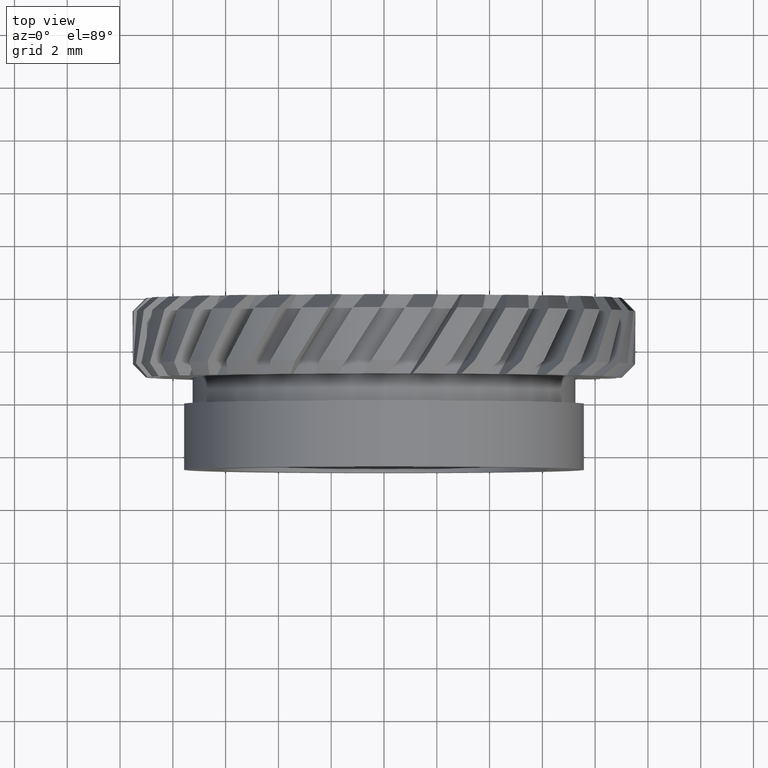
[diagram: clean part render]
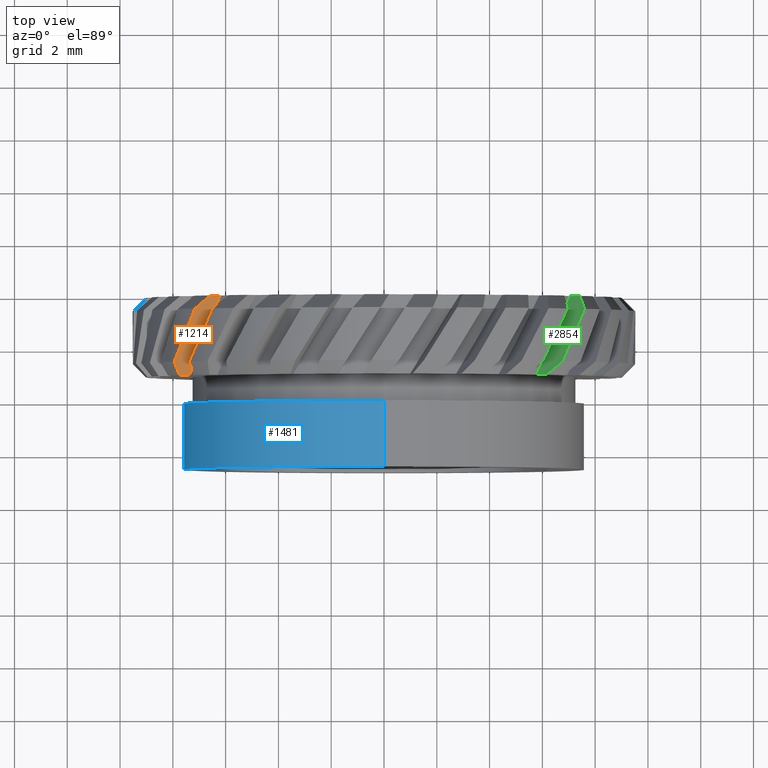
[diagram: same view with three faces highlighted in distinct colors, each labeled with its STEP entity id]
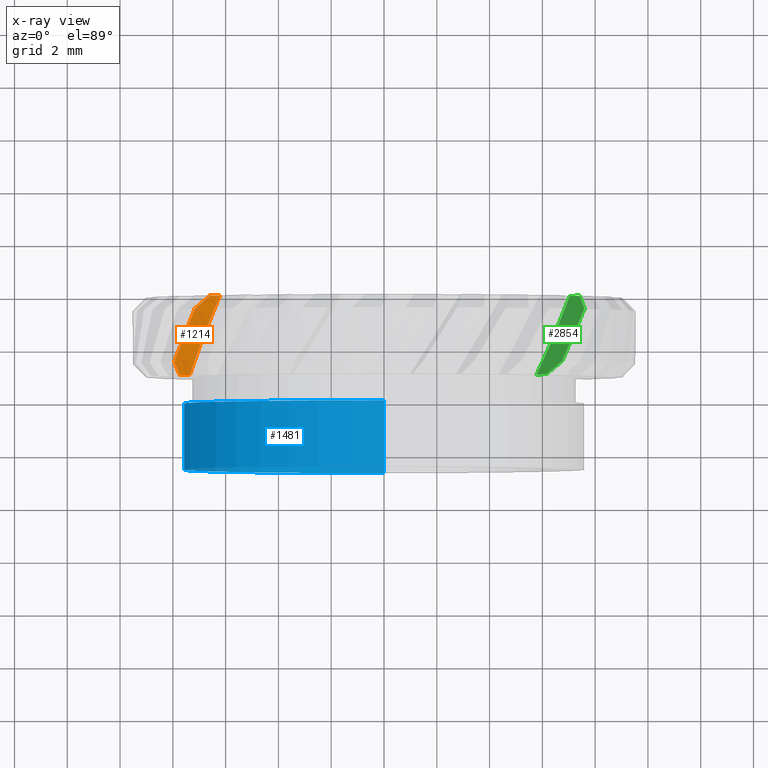
[diagram: x-ray of the same camera — body ghosted, the three highlighted faces saturated]
A machine part, top view with three faces highlighted in distinct colors.
The next image is the same camera in x-ray (body ghosted, the three faces saturated) — at least one of them is partly hidden behind the body in this view.
Their STEP definitions:

[orange] entity #1214 — the highlighted planar face has unit normal (-0.5629, 0.5408, -0.6251).
#131 = CARTESIAN_POINT ( 'NONE',  ( -7.745846453887818200, 18.87125740523061900, 4.631683032418537000 ) ) ;
#395 = CARTESIAN_POINT ( 'NONE',  ( -7.712005647165258700, 20.03370540940624900, 5.606787828037464100 ) ) ;
#480 = CARTESIAN_POINT ( 'NONE',  ( -7.366731118601965300, 18.87125740523061500, 4.290326051271807600 ) ) ;
#485 = VERTEX_POINT ( 'NONE', #3366 ) ;
#657 = B_SPLINE_CURVE_WITH_KNOTS ( 'NONE', 3,
 ( #4915, #6657, #7370, #131 ),
 .UNSPECIFIED., .F., .F.,
 ( 4, 4 ),
 ( 3.250321512666783800E-007, 0.0008191307024660573800 ),
 .UNSPECIFIED. ) ;
#658 = LINE ( 'NONE', #1713, #6813 ) ;
#776 =( BOUNDED_CURVE ( )  B_SPLINE_CURVE ( 3, ( #5887, #6494, #5331, #981 ),
 .UNSPECIFIED., .F., .T. ) 
 B_SPLINE_CURVE_WITH_KNOTS ( ( 4, 4 ),
 ( 1.548788711863043500, 1.570796326794896800 ),
 .UNSPECIFIED. ) 
 CURVE ( )  GEOMETRIC_REPRESENTATION_ITEM ( )  RATIONAL_B_SPLINE_CURVE ( ( 1.000000000000000000, 0.9999596391476737200, 0.9999596391476737200, 1.000000000000000000 ) ) 
 REPRESENTATION_ITEM ( '' )  );
#792 = CARTESIAN_POINT ( 'NONE',  ( -7.072086261338187200, 19.76279148755805100, 4.796247842063832100 ) ) ;
#808 = VERTEX_POINT ( 'NONE', #4738 ) ;
#960 = EDGE_CURVE ( 'NONE', #4555, #7469, #7052, .T. ) ;
#981 = CARTESIAN_POINT ( 'NONE',  ( -6.335309637194721500, 21.57943553625633400, 5.704338419209346300 ) ) ;
#1041 = CARTESIAN_POINT ( 'NONE',  ( -7.450953325787831500, 20.70139386461857700, 5.949318901140630400 ) ) ;
#1214 = ADVANCED_FACE ( 'NONE', ( #6470 ), #5675, .F. ) ;
#1263 = DIRECTION ( 'NONE',  ( -0.7431448254773862500, 0.0000000000000000000, 0.6691306063588671200 ) ) ;
#1505 = CARTESIAN_POINT ( 'NONE',  ( -7.366731118601965300, 18.87125740523061500, 4.290326051271807600 ) ) ;
#1602 = ORIENTED_EDGE ( 'NONE', *, *, #3360, .F. ) ;
#1713 = CARTESIAN_POINT ( 'NONE',  ( -1.164937419604970000, 18.87125740523061900, -1.293794077206075400 ) ) ;
#1814 = DIRECTION ( 'NONE',  ( 0.7431448254773862500, 0.0000000000000000000, -0.6691306063588671200 ) ) ;
#1892 = CARTESIAN_POINT ( 'NONE',  ( -6.776192494000686600, 21.70538838200027600, 6.210266586866255000 ) ) ;
#2086 = CARTESIAN_POINT ( 'NONE',  ( -6.727064007195107100, 20.66870797294348000, 5.269251113147903200 ) ) ;
#2400 = VECTOR ( 'NONE', #1814, 1000.000000000000000 ) ;
#2673 = DIRECTION ( 'NONE',  ( -0.5628582632847399800, 0.5407575913135005400, -0.6251174312790418500 ) ) ;
#2699 = DIRECTION ( 'NONE',  ( -0.3618374549687630200, -0.8411784753765523300, -0.4018612058222430000 ) ) ;
#3127 = CARTESIAN_POINT ( 'NONE',  ( -6.971977192251825900, 21.53868184943352700, 6.242342499686852600 ) ) ;
#3146 = VERTEX_POINT ( 'NONE', #3314 ) ;
#3211 = AXIS2_PLACEMENT_3D ( 'NONE', #4492, #2673, #2699 ) ;
#3305 = CARTESIAN_POINT ( 'NONE',  ( -6.335309637194721500, 21.57943553625633400, 5.704338419209346300 ) ) ;
#3314 = CARTESIAN_POINT ( 'NONE',  ( -6.208246742853996900, 21.87125740523061900, 5.842370869761940500 ) ) ;
#3360 = EDGE_CURVE ( 'NONE', #4555, #3146, #5127, .T. ) ;
#3366 = CARTESIAN_POINT ( 'NONE',  ( -7.949263164194285000, 19.37125740523060800, 5.247365067001149800 ) ) ;
#3412 = ORIENTED_EDGE ( 'NONE', *, *, #3999, .F. ) ;
#3545 = CARTESIAN_POINT ( 'NONE',  ( -7.167304694373476600, 21.37125740523061900, 6.273385722081183500 ) ) ;
#3608 = VERTEX_POINT ( 'NONE', #3305 ) ;
#3682 = ORIENTED_EDGE ( 'NONE', *, *, #7542, .T. ) ;
#3999 = EDGE_CURVE ( 'NONE', #3608, #4304, #5907, .T. ) ;
#4271 =( BOUNDED_CURVE ( )  B_SPLINE_CURVE ( 3, ( #4553, #395, #1041, #5797 ),
 .UNSPECIFIED., .F., .T. ) 
 B_SPLINE_CURVE_WITH_KNOTS ( ( 4, 4 ),
 ( 4.562798301920572900, 4.698338250505564400 ),
 .UNSPECIFIED. ) 
 CURVE ( )  GEOMETRIC_REPRESENTATION_ITEM ( )  RATIONAL_B_SPLINE_CURVE ( ( 1.000000000000000000, 0.9984696627031844900, 0.9984696627031844900, 1.000000000000000000 ) ) 
 REPRESENTATION_ITEM ( '' )  );
#4281 = CARTESIAN_POINT ( 'NONE',  ( 0.1255287498014223400, 21.87125740523061900, 0.1394138005003188500 ) ) ;
#4300 = EDGE_CURVE ( 'NONE', #4304, #808, #658, .T. ) ;
#4304 = VERTEX_POINT ( 'NONE', #480 ) ;
#4465 = ORIENTED_EDGE ( 'NONE', *, *, #960, .T. ) ;
#4492 = CARTESIAN_POINT ( 'NONE',  ( 7.820707291100646300, 23.30325372192209300, -5.550608221697999100 ) ) ;
#4553 = CARTESIAN_POINT ( 'NONE',  ( -7.949263164194285000, 19.37125740523060800, 5.247365067001149800 ) ) ;
#4555 = VERTEX_POINT ( 'NONE', #5107 ) ;
#4624 = EDGE_CURVE ( 'NONE', #485, #7469, #4271, .T. ) ;
#4738 = CARTESIAN_POINT ( 'NONE',  ( -7.745846453887818200, 18.87125740523061900, 4.631683032418537000 ) ) ;
#4872 = CARTESIAN_POINT ( 'NONE',  ( -7.167304694373476600, 21.37125740523061900, 6.273385722081183500 ) ) ;
#4915 = CARTESIAN_POINT ( 'NONE',  ( -7.949263164194285000, 19.37125740523060800, 5.247365067001149800 ) ) ;
#5107 = CARTESIAN_POINT ( 'NONE',  ( -6.579904168657243700, 21.87125740523061900, 6.177012719048514500 ) ) ;
#5127 = LINE ( 'NONE', #4281, #2400 ) ;
#5285 = ORIENTED_EDGE ( 'NONE', *, *, #4624, .F. ) ;
#5331 = CARTESIAN_POINT ( 'NONE',  ( -6.293462498231012800, 21.67671930848329600, 5.750814375452238300 ) ) ;
#5427 = ORIENTED_EDGE ( 'NONE', *, *, #4300, .F. ) ;
#5675 = PLANE ( 'NONE',  #3211 ) ;
#5699 = CARTESIAN_POINT ( 'NONE',  ( -6.335309637194721500, 21.57943553625633400, 5.704338419209346300 ) ) ;
#5797 = CARTESIAN_POINT ( 'NONE',  ( -7.167304694373476600, 21.37125740523061900, 6.273385722081183500 ) ) ;
#5887 = CARTESIAN_POINT ( 'NONE',  ( -6.208246742853996900, 21.87125740523061900, 5.842370869761940500 ) ) ;
#5907 =( BOUNDED_CURVE ( )  B_SPLINE_CURVE ( 3, ( #5699, #2086, #792, #1505 ),
 .UNSPECIFIED., .F., .T. ) 
 B_SPLINE_CURVE_WITH_KNOTS ( ( 4, 4 ),
 ( 1.570796326794896800, 1.776462714695245000 ),
 .UNSPECIFIED. ) 
 CURVE ( )  GEOMETRIC_REPRESENTATION_ITEM ( )  RATIONAL_B_SPLINE_CURVE ( ( 1.000000000000000000, 0.9964782165225353200, 0.9964782165225353200, 1.000000000000000000 ) ) 
 REPRESENTATION_ITEM ( '' )  );
#6025 = EDGE_LOOP ( 'NONE', ( #4465, #5285, #3682, #5427, #3412, #7680, #1602 ) ) ;
#6155 = CARTESIAN_POINT ( 'NONE',  ( -6.579904168657243700, 21.87125740523061900, 6.177012719048514500 ) ) ;
#6470 = FACE_OUTER_BOUND ( 'NONE', #6025, .T. ) ;
#6494 = CARTESIAN_POINT ( 'NONE',  ( -6.251106490592866800, 21.77399719102631100, 5.796827049413841400 ) ) ;
#6530 = EDGE_CURVE ( 'NONE', #3146, #3608, #776, .T. ) ;
#6657 = CARTESIAN_POINT ( 'NONE',  ( -7.883199014066158300, 19.20331985264007800, 5.042606324352518300 ) ) ;
#6813 = VECTOR ( 'NONE', #1263, 1000.000000000000000 ) ;
#7052 = B_SPLINE_CURVE_WITH_KNOTS ( 'NONE', 3,
 ( #6155, #1892, #3127, #4872 ),
 .UNSPECIFIED., .F., .F.,
 ( 4, 4 ),
 ( 3.124448867818576300E-007, 0.0007776972487807308700 ),
 .UNSPECIFIED. ) ;
#7370 = CARTESIAN_POINT ( 'NONE',  ( -7.815470615925256900, 19.03658173085771200, 4.837386653217562200 ) ) ;
#7469 = VERTEX_POINT ( 'NONE', #3545 ) ;
#7542 = EDGE_CURVE ( 'NONE', #485, #808, #657, .T. ) ;
#7680 = ORIENTED_EDGE ( 'NONE', *, *, #6530, .F. ) ;

[blue] entity #1481 — the highlighted cylindrical surface (partial cylindrical patch) has radius 7.6 mm, axis along (-0, 1, -0).
#71 = VERTEX_POINT ( 'NONE', #7053 ) ;
#410 = CARTESIAN_POINT ( 'NONE',  ( 9.307315673519891400E-016, 17.87125740523061500, -7.600000000000005900 ) ) ;
#570 = EDGE_CURVE ( 'NONE', #1200, #71, #5945, .T. ) ;
#583 = CYLINDRICAL_SURFACE ( 'NONE', #6858, 7.600000000000005900 ) ;
#585 = DIRECTION ( 'NONE',  ( -0.0000000000000000000, 1.000000000000000000, -0.0000000000000000000 ) ) ;
#1200 = VERTEX_POINT ( 'NONE', #2036 ) ;
#1481 = ADVANCED_FACE ( 'NONE', ( #4581 ), #583, .T. ) ;
#1756 = ORIENTED_EDGE ( 'NONE', *, *, #570, .T. ) ;
#2036 = CARTESIAN_POINT ( 'NONE',  ( 9.307315673519891400E-016, 15.37125740523061900, -7.600000000000005900 ) ) ;
#2154 = VERTEX_POINT ( 'NONE', #410 ) ;
#2391 = ORIENTED_EDGE ( 'NONE', *, *, #4515, .F. ) ;
#2493 = VECTOR ( 'NONE', #6000, 1000.000000000000000 ) ;
#2684 = DIRECTION ( 'NONE',  ( -0.0000000000000000000, 1.000000000000000000, -0.0000000000000000000 ) ) ;
#2724 = DIRECTION ( 'NONE',  ( 0.0000000000000000000, 0.0000000000000000000, 1.000000000000000000 ) ) ;
#3241 = EDGE_CURVE ( 'NONE', #71, #4443, #5890, .T. ) ;
#3332 = AXIS2_PLACEMENT_3D ( 'NONE', #4450, #5561, #5071 ) ;
#3928 = CARTESIAN_POINT ( 'NONE',  ( 0.0000000000000000000, 17.87125740523061500, 0.0000000000000000000 ) ) ;
#3935 = CARTESIAN_POINT ( 'NONE',  ( 9.307315673519891400E-016, 66.62876213592232900, -7.600000000000005900 ) ) ;
#4320 = AXIS2_PLACEMENT_3D ( 'NONE', #3928, #5173, #2724 ) ;
#4334 = CARTESIAN_POINT ( 'NONE',  ( 0.0000000000000000000, 17.87125740523061500, 7.600000000000005900 ) ) ;
#4352 = LINE ( 'NONE', #3935, #5778 ) ;
#4443 = VERTEX_POINT ( 'NONE', #4334 ) ;
#4450 = CARTESIAN_POINT ( 'NONE',  ( 0.0000000000000000000, 15.37125740523061900, 0.0000000000000000000 ) ) ;
#4515 = EDGE_CURVE ( 'NONE', #1200, #2154, #4352, .T. ) ;
#4581 = FACE_OUTER_BOUND ( 'NONE', #6979, .T. ) ;
#5052 = ORIENTED_EDGE ( 'NONE', *, *, #3241, .T. ) ;
#5064 = EDGE_CURVE ( 'NONE', #2154, #4443, #5687, .T. ) ;
#5071 = DIRECTION ( 'NONE',  ( 0.0000000000000000000, 0.0000000000000000000, 1.000000000000000000 ) ) ;
#5173 = DIRECTION ( 'NONE',  ( -0.0000000000000000000, 1.000000000000000000, -0.0000000000000000000 ) ) ;
#5434 = DIRECTION ( 'NONE',  ( 0.0000000000000000000, 0.0000000000000000000, 1.000000000000000000 ) ) ;
#5561 = DIRECTION ( 'NONE',  ( -0.0000000000000000000, 1.000000000000000000, -0.0000000000000000000 ) ) ;
#5687 = CIRCLE ( 'NONE', #4320, 7.600000000000005900 ) ;
#5778 = VECTOR ( 'NONE', #2684, 1000.000000000000000 ) ;
#5890 = LINE ( 'NONE', #7617, #2493 ) ;
#5945 = CIRCLE ( 'NONE', #3332, 7.600000000000005900 ) ;
#6000 = DIRECTION ( 'NONE',  ( -0.0000000000000000000, 1.000000000000000000, -0.0000000000000000000 ) ) ;
#6858 = AXIS2_PLACEMENT_3D ( 'NONE', #7286, #585, #5434 ) ;
#6903 = ORIENTED_EDGE ( 'NONE', *, *, #5064, .F. ) ;
#6979 = EDGE_LOOP ( 'NONE', ( #2391, #1756, #5052, #6903 ) ) ;
#7053 = CARTESIAN_POINT ( 'NONE',  ( 0.0000000000000000000, 15.37125740523061900, 7.600000000000005900 ) ) ;
#7286 = CARTESIAN_POINT ( 'NONE',  ( 0.0000000000000000000, 66.62876213592232900, 0.0000000000000000000 ) ) ;
#7617 = CARTESIAN_POINT ( 'NONE',  ( 0.0000000000000000000, 66.62876213592232900, 7.600000000000005900 ) ) ;

[green] entity #2854 — the highlighted planar face has unit normal (0.5629, -0.5408, -0.6251).
#57 = EDGE_CURVE ( 'NONE', #628, #7212, #3528, .T. ) ;
#359 = EDGE_CURVE ( 'NONE', #1832, #2939, #4672, .T. ) ;
#376 = CARTESIAN_POINT ( 'NONE',  ( 6.590229284607407800, 20.69265181520477600, 5.421221468516970200 ) ) ;
#597 = CARTESIAN_POINT ( 'NONE',  ( 7.599179052335697000, 21.37125740523061900, 5.742656417594774100 ) ) ;
#628 = VERTEX_POINT ( 'NONE', #5085 ) ;
#1053 = CARTESIAN_POINT ( 'NONE',  ( 6.335309637194800600, 20.10002958273694100, 5.704338419209258300 ) ) ;
#1127 = CARTESIAN_POINT ( 'NONE',  ( 0.7619031944131375900, 21.87125740523061900, -0.8461792228035731600 ) ) ;
#1241 = DIRECTION ( 'NONE',  ( 0.3618374549687574100, 0.8411784753765524400, -0.4018612058222479400 ) ) ;
#1832 = VERTEX_POINT ( 'NONE', #597 ) ;
#1894 = VERTEX_POINT ( 'NONE', #2038 ) ;
#1947 = CARTESIAN_POINT ( 'NONE',  ( 6.354409074076883700, 19.03694428573474100, 6.641157152999217500 ) ) ;
#1962 = EDGE_CURVE ( 'NONE', #3143, #2659, #2655, .T. ) ;
#2011 = CARTESIAN_POINT ( 'NONE',  ( 7.059001119042578800, 20.03824349520654700, 6.409401187327254900 ) ) ;
#2038 = CARTESIAN_POINT ( 'NONE',  ( 5.779491048036073100, 18.87125740523061500, 6.266826008887671900 ) ) ;
#2049 = CARTESIAN_POINT ( 'NONE',  ( 6.152579456510767200, 18.87125740523061900, 6.602756320758924600 ) ) ;
#2472 = ORIENTED_EDGE ( 'NONE', *, *, #5146, .F. ) ;
#2606 = CARTESIAN_POINT ( 'NONE',  ( 7.599179052335697000, 21.37125740523061900, 5.742656417594774100 ) ) ;
#2655 = B_SPLINE_CURVE_WITH_KNOTS ( 'NONE', 3,
 ( #4431, #1947, #6182, #4399 ),
 .UNSPECIFIED., .F., .F.,
 ( 4, 4 ),
 ( 3.185892975205781800E-007, 0.0007921251612160435200 ),
 .UNSPECIFIED. ) ;
#2659 = VERTEX_POINT ( 'NONE', #4092 ) ;
#2854 = ADVANCED_FACE ( 'NONE', ( #3337 ), #3647, .F. ) ;
#2939 = VERTEX_POINT ( 'NONE', #2997 ) ;
#2997 = CARTESIAN_POINT ( 'NONE',  ( 7.415191671145204400, 21.87125740523061900, 5.144468629526172300 ) ) ;
#3074 = CARTESIAN_POINT ( 'NONE',  ( -0.5285629749932357900, 18.87125740523061900, 0.5870286549028394000 ) ) ;
#3111 = CARTESIAN_POINT ( 'NONE',  ( 7.599179052335697000, 21.37125740523061900, 5.742656417594774100 ) ) ;
#3120 =( BOUNDED_CURVE ( )  B_SPLINE_CURVE ( 3, ( #2606, #5631, #2011, #3828 ),
 .UNSPECIFIED., .F., .T. ) 
 B_SPLINE_CURVE_WITH_KNOTS ( ( 4, 4 ),
 ( 1.484893562231942400, 1.620002154428315200 ),
 .UNSPECIFIED. ) 
 CURVE ( )  GEOMETRIC_REPRESENTATION_ITEM ( )  RATIONAL_B_SPLINE_CURVE ( ( 1.000000000000000000, 0.9984793841129278000, 0.9984793841129278000, 1.000000000000000000 ) ) 
 REPRESENTATION_ITEM ( '' )  );
#3143 = VERTEX_POINT ( 'NONE', #2049 ) ;
#3194 = CARTESIAN_POINT ( 'NONE',  ( 5.973399672248435300, 19.27981845428203700, 6.087996541437489000 ) ) ;
#3286 = VECTOR ( 'NONE', #5494, 1000.000000000000000 ) ;
#3337 = FACE_OUTER_BOUND ( 'NONE', #3691, .T. ) ;
#3528 =( BOUNDED_CURVE ( )  B_SPLINE_CURVE ( 3, ( #1053, #376, #6434, #7776 ),
 .UNSPECIFIED., .F., .F. ) 
 B_SPLINE_CURVE_WITH_KNOTS ( ( 4, 4 ),
 ( 4.712388980384689700, 4.846354899233878300 ),
 .UNSPECIFIED. ) 
 CURVE ( )  GEOMETRIC_REPRESENTATION_ITEM ( )  RATIONAL_B_SPLINE_CURVE ( ( 1.000000000000000000, 0.9985049868160654800, 0.9985049868160654800, 1.000000000000000000 ) ) 
 REPRESENTATION_ITEM ( '' )  );
#3605 =( BOUNDED_CURVE ( )  B_SPLINE_CURVE ( 3, ( #5680, #3194, #5814, #6313 ),
 .UNSPECIFIED., .F., .F. ) 
 B_SPLINE_CURVE_WITH_KNOTS ( ( 4, 4 ),
 ( 4.619596051014035300, 4.712388980384689700 ),
 .UNSPECIFIED. ) 
 CURVE ( )  GEOMETRIC_REPRESENTATION_ITEM ( )  RATIONAL_B_SPLINE_CURVE ( ( 1.000000000000000000, 0.9992825847296723500, 0.9992825847296723500, 1.000000000000000000 ) ) 
 REPRESENTATION_ITEM ( '' )  );
#3647 = PLANE ( 'NONE',  #4993 ) ;
#3691 = EDGE_LOOP ( 'NONE', ( #7784, #6894, #6047, #7008, #4730, #2472, #4113 ) ) ;
#3828 = CARTESIAN_POINT ( 'NONE',  ( 6.756401686777162600, 19.37125740523060800, 6.713915492982826200 ) ) ;
#4092 = CARTESIAN_POINT ( 'NONE',  ( 6.756401686777162600, 19.37125740523060800, 6.713915492982826200 ) ) ;
#4113 = ORIENTED_EDGE ( 'NONE', *, *, #57, .F. ) ;
#4399 = CARTESIAN_POINT ( 'NONE',  ( 6.756401686777162600, 19.37125740523060800, 6.713915492982826200 ) ) ;
#4431 = CARTESIAN_POINT ( 'NONE',  ( 6.152579456510767200, 18.87125740523061900, 6.602756320758924600 ) ) ;
#4472 = LINE ( 'NONE', #1127, #7182 ) ;
#4672 = B_SPLINE_CURVE_WITH_KNOTS ( 'NONE', 3,
 ( #3111, #5590, #6193, #7388 ),
 .UNSPECIFIED., .F., .F.,
 ( 4, 4 ),
 ( 3.184173117731315500E-007, 0.0008013677205582872900 ),
 .UNSPECIFIED. ) ;
#4730 = ORIENTED_EDGE ( 'NONE', *, *, #359, .T. ) ;
#4850 = CARTESIAN_POINT ( 'NONE',  ( 7.040448322229678100, 21.87125740523061900, 4.807048202588922500 ) ) ;
#4882 = CARTESIAN_POINT ( 'NONE',  ( -5.887401313266841500, 22.87064764887129400, -7.697762035674297300 ) ) ;
#4993 = AXIS2_PLACEMENT_3D ( 'NONE', #4882, #5509, #1241 ) ;
#5085 = CARTESIAN_POINT ( 'NONE',  ( 6.335309637194800600, 20.10002958273694100, 5.704338419209258300 ) ) ;
#5146 = EDGE_CURVE ( 'NONE', #7212, #2939, #4472, .T. ) ;
#5375 = EDGE_CURVE ( 'NONE', #1832, #2659, #3120, .T. ) ;
#5494 = DIRECTION ( 'NONE',  ( -0.7431448254773954700, 0.0000000000000000000, -0.6691306063588569100 ) ) ;
#5509 = DIRECTION ( 'NONE',  ( 0.5628582632847313200, -0.5407575913135003200, -0.6251174312790496200 ) ) ;
#5590 = CARTESIAN_POINT ( 'NONE',  ( 7.539326609832241600, 21.53896771910542500, 5.543687294376233000 ) ) ;
#5631 = CARTESIAN_POINT ( 'NONE',  ( 7.340354738345486600, 20.70592544966066500, 6.085155108459053600 ) ) ;
#5680 = CARTESIAN_POINT ( 'NONE',  ( 5.779491048036073100, 18.87125740523061500, 6.266826008887671900 ) ) ;
#5814 = CARTESIAN_POINT ( 'NONE',  ( 6.158805548308037300, 19.68970323772018500, 5.900366069245421800 ) ) ;
#6047 = ORIENTED_EDGE ( 'NONE', *, *, #1962, .T. ) ;
#6182 = CARTESIAN_POINT ( 'NONE',  ( 6.555666987070698500, 19.20366105625519600, 6.678152314171548200 ) ) ;
#6193 = CARTESIAN_POINT ( 'NONE',  ( 7.478062861415284400, 21.70569147912626900, 5.344300843633918800 ) ) ;
#6281 = EDGE_CURVE ( 'NONE', #3143, #1894, #7350, .T. ) ;
#6313 = CARTESIAN_POINT ( 'NONE',  ( 6.335309637194800600, 20.10002958273694100, 5.704338419209258300 ) ) ;
#6398 = EDGE_CURVE ( 'NONE', #1894, #628, #3605, .T. ) ;
#6434 = CARTESIAN_POINT ( 'NONE',  ( 6.825627436292609000, 21.28394508059666600, 5.121676906574244000 ) ) ;
#6894 = ORIENTED_EDGE ( 'NONE', *, *, #6281, .F. ) ;
#7008 = ORIENTED_EDGE ( 'NONE', *, *, #5375, .F. ) ;
#7182 = VECTOR ( 'NONE', #7772, 1000.000000000000000 ) ;
#7212 = VERTEX_POINT ( 'NONE', #4850 ) ;
#7350 = LINE ( 'NONE', #3074, #3286 ) ;
#7388 = CARTESIAN_POINT ( 'NONE',  ( 7.415191671145204400, 21.87125740523061900, 5.144468629526172300 ) ) ;
#7772 = DIRECTION ( 'NONE',  ( 0.7431448254773954700, 0.0000000000000000000, 0.6691306063588569100 ) ) ;
#7776 = CARTESIAN_POINT ( 'NONE',  ( 7.040448322229678100, 21.87125740523061900, 4.807048202588922500 ) ) ;
#7784 = ORIENTED_EDGE ( 'NONE', *, *, #6398, .F. ) ;